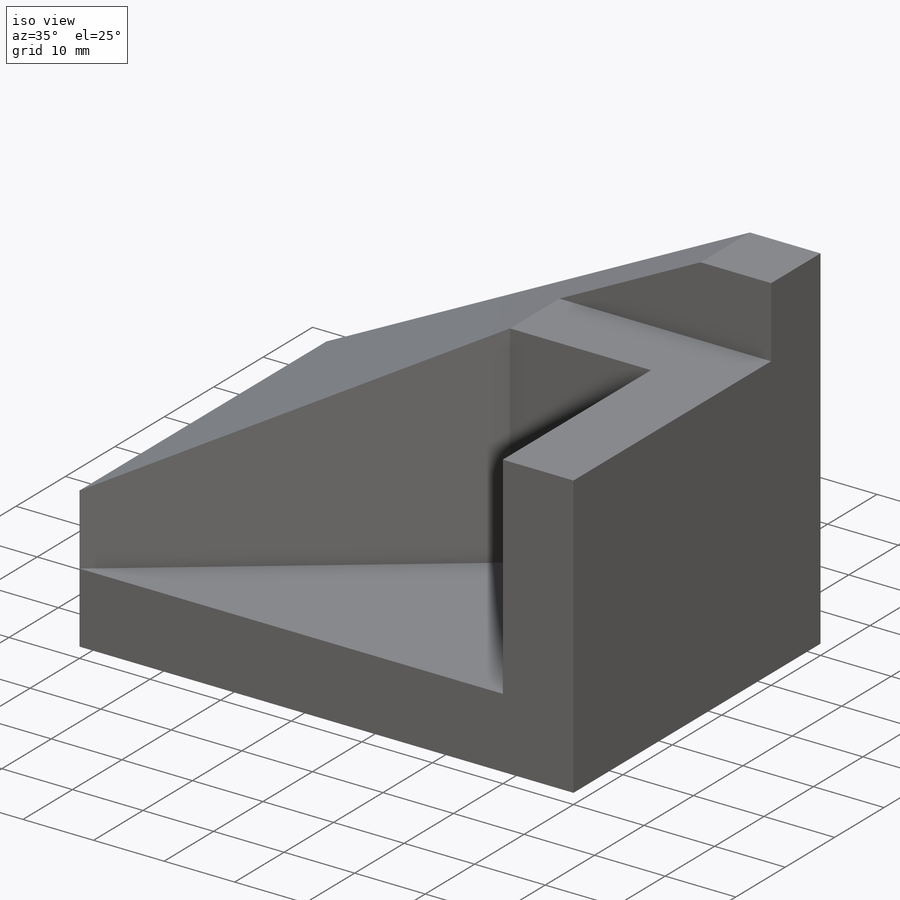
[diagram: iso view]
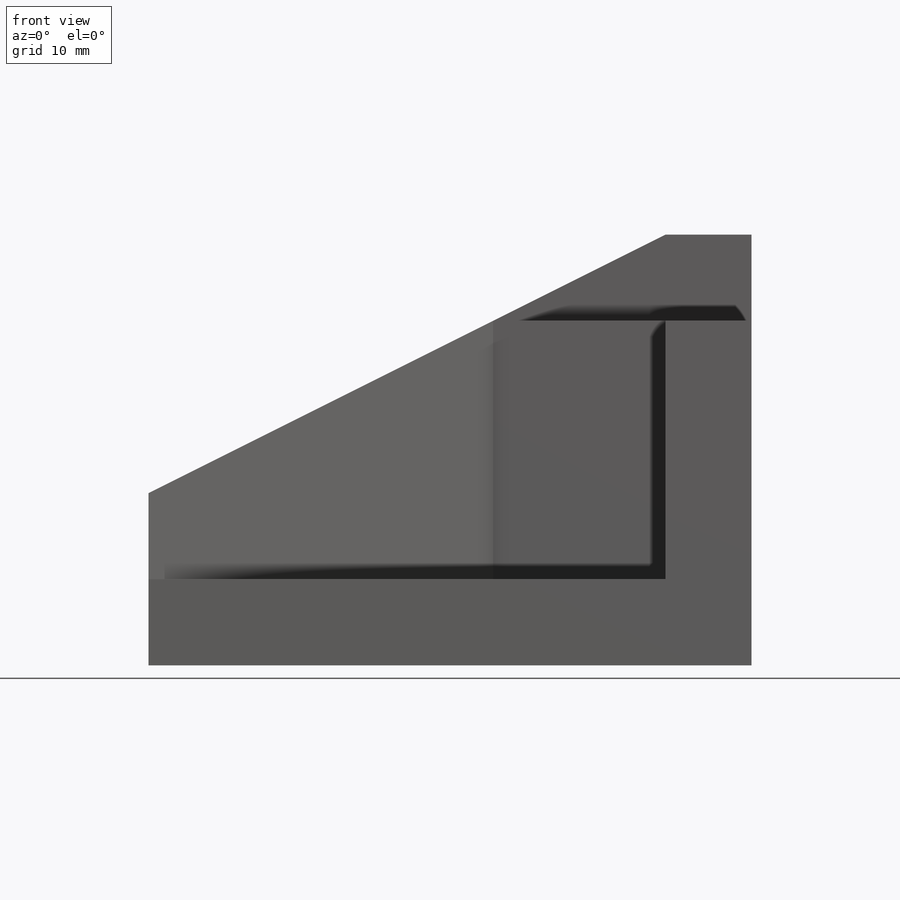
[diagram: front view]
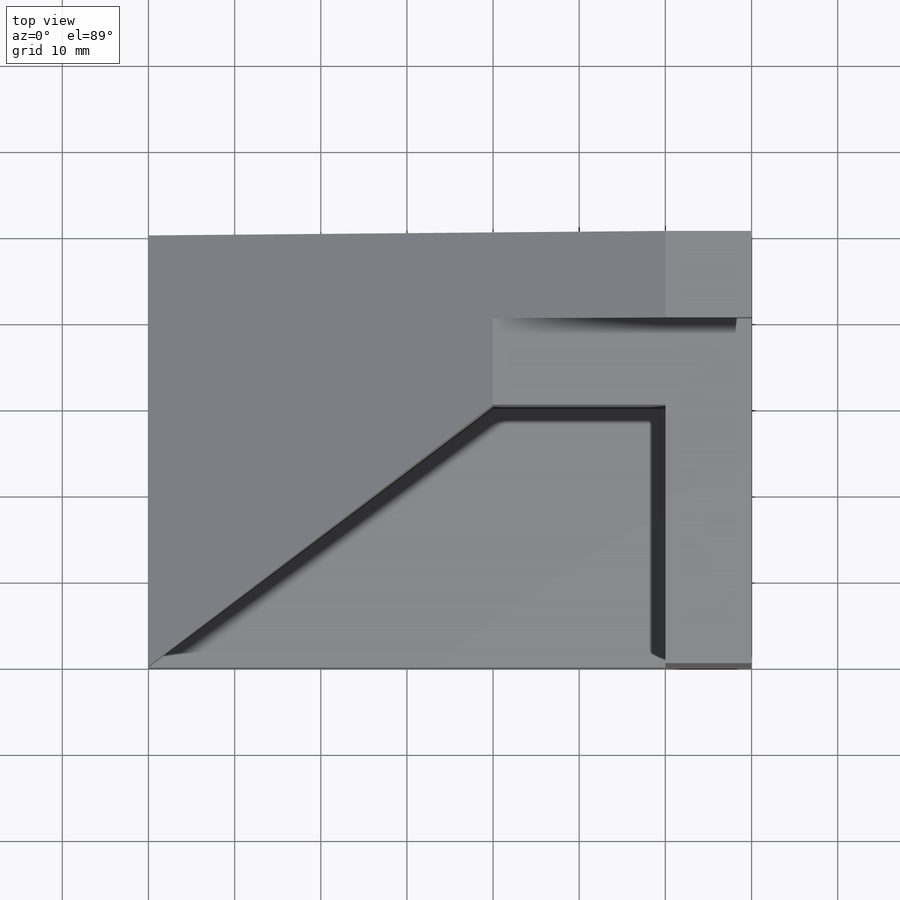
[diagram: top view]
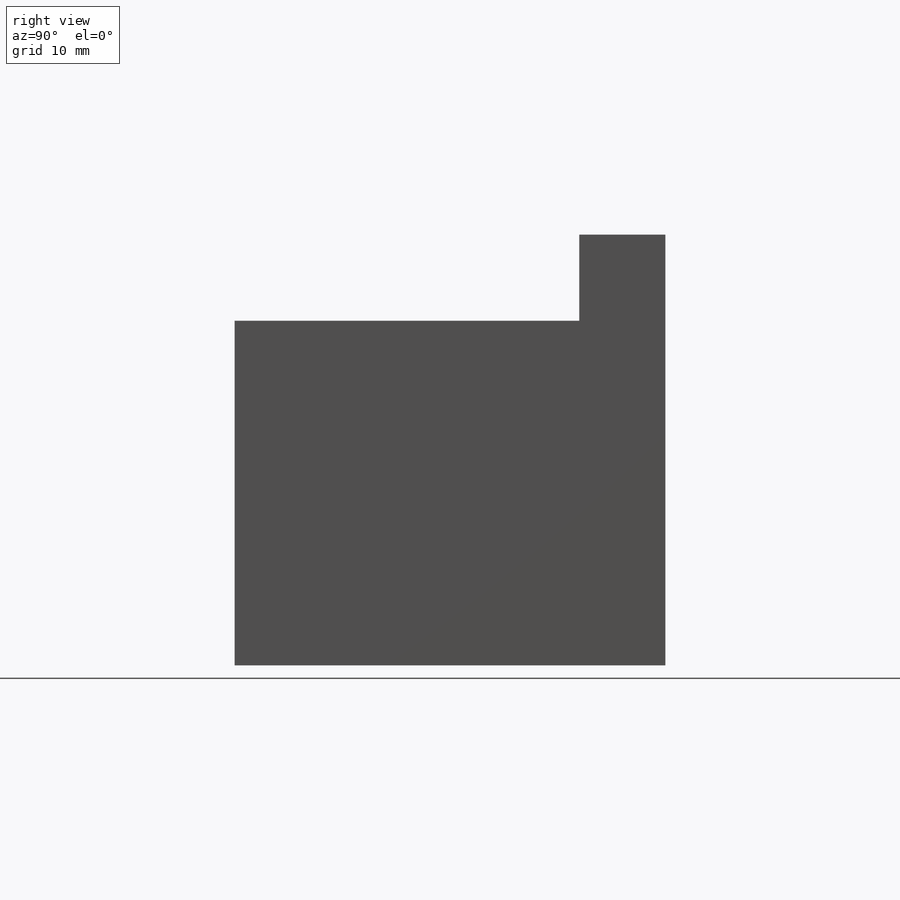
[diagram: right view]
SOLIDWORKS PART (.sldprt)
format: sldprt  version: not decoded by parser v0  size: 336,896 bytes
history: native  units: mm
features: sketch x18, cut_extrude x14, extrude x4, plane x2, material x1 (+13 scaffold rows collapsed)
feature tree (52):
  scaffold x13  (default folders/planes/origin — collapsed)
  material  "Material <not specified>"
  sketch  "Sketch1"  dims[c1.D1=~61.483342mm c1.D2=~74.989519mm c2.D1=70.0mm c2.D2=50.0mm]
  extrude  "Boss-Extrude1"  Depth=50mm
  sketch  "Sketch2"  dims[D1=20.0mm D2=10.0mm]
  cut_extrude  "Cut-Extrude1"  Depth=50mm
  sketch  "Sketch3"  dims[c1.D1=~10.349171mm c1.D2=~39.420054mm c2.D1=10.0mm c2.D2=10.0mm]
  cut_extrude  "Cut-Extrude2"  Depth=50mm
  sketch  "Sketch4"  dims[D1=10.0mm D2=10.0mm D3=10.0mm]
  cut_extrude  "Cut-Extrude3"  Depth=30mm
  sketch  "Sketch8"  dims[D1=20.0mm D2=20.0mm]
  extrude  "Boss-Extrude2"  Depth=30mm
  sketch  "Sketch9"  dims[c1.D1=10.0mm c1.D2=~21.195205mm c2.D1=20.0mm]
  extrude  "Boss-Extrude3"  Depth=5mm
  sketch  "Sketch10"  dims[D1=20.0mm]
  cut_extrude  "Cut-Extrude5"  Depth=5mm
  sketch  "Sketch15"  dims[D1=50.0mm D2=70.0mm]
  cut_extrude  "Cut-Extrude10"  Depth=19mm
  sketch  "Sketch16"  dims[D1=~8.191788mm]
  cut_extrude  "Cut-Extrude11"  Depth=19mm
  plane  "Plane3"
  sketch  "Sketch18"  dims[D1=~69.764178mm]
  extrude  "Boss-Extrude8"  Depth=10mm
  sketch  "Sketch19"  dims[c1.D1=~21.138565mm c1.D2=50.0mm c2.D1=20.0mm]
  cut_extrude  "Cut-Extrude12"  Depth=10mm
  sketch  "Sketch20"  dims[c1.D1=~76.778693mm c1.D2=~45.01037mm c2.D1=45.0mm c2.D2=~76.778693mm]
  cut_extrude  "Cut-Extrude13"  Depth=28mm
  sketch  "Sketch21"  dims[D1=~13.416408mm]
  cut_extrude  "Cut-Extrude14"  Depth=28mm
  sketch  "Sketch22"  dims[D1=10.0mm D2=20.0mm]
  cut_extrude  "Cut-Extrude15"  Depth=30mm
  plane  "Plane4"
  sketch  "Sketch23"  dims[D1=30.0mm]
  cut_extrude  "Cut-Extrude16"  Depth=10mm
  sketch  "Sketch24"  dims[D1=~53.851648mm]
  cut_extrude  "Cut-Extrude17"  Depth=10mm
  sketch  "Sketch25"  dims[D1=2.4mm]
  cut_extrude  "Cut-Extrude18"  Depth=10mm
  sketch  "Sketch26"  dims[D1=~2.198448mm]
  cut_extrude  "Cut-Extrude19"  Depth=5mm
decode coverage: 36 of 36 modeling features carry decoded parameters
note: ~ marks probable driven/reference dimensions
note: suppression state not decoded; provenance and decode notes live in map.json
